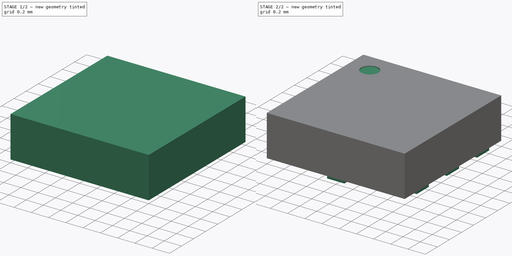
[diagram: build sequence overview — one tinted view per stage of 2, left to right]
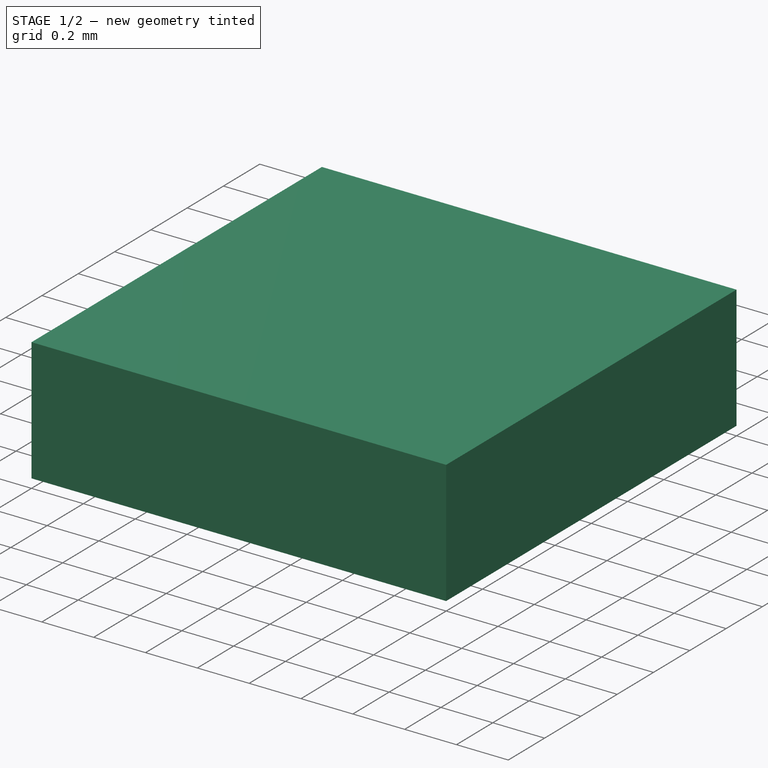
[diagram: stage 1 of 2 — iso view after this stage's code; geometry added in this stage tinted green]
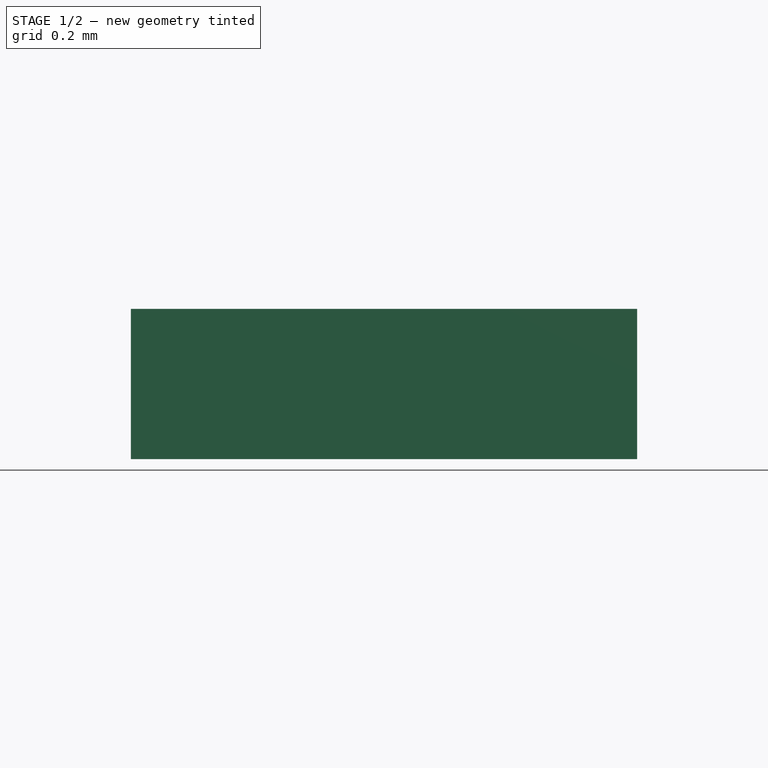
[diagram: stage 1 of 2 — front view after this stage's code; geometry added in this stage tinted green]
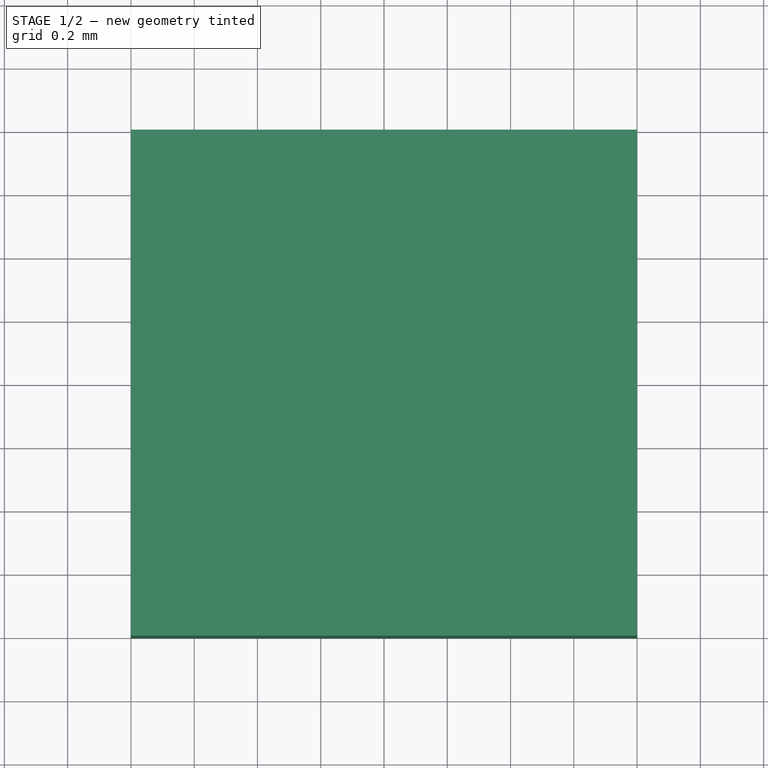
[diagram: stage 1 of 2 — top view after this stage's code; geometry added in this stage tinted green]
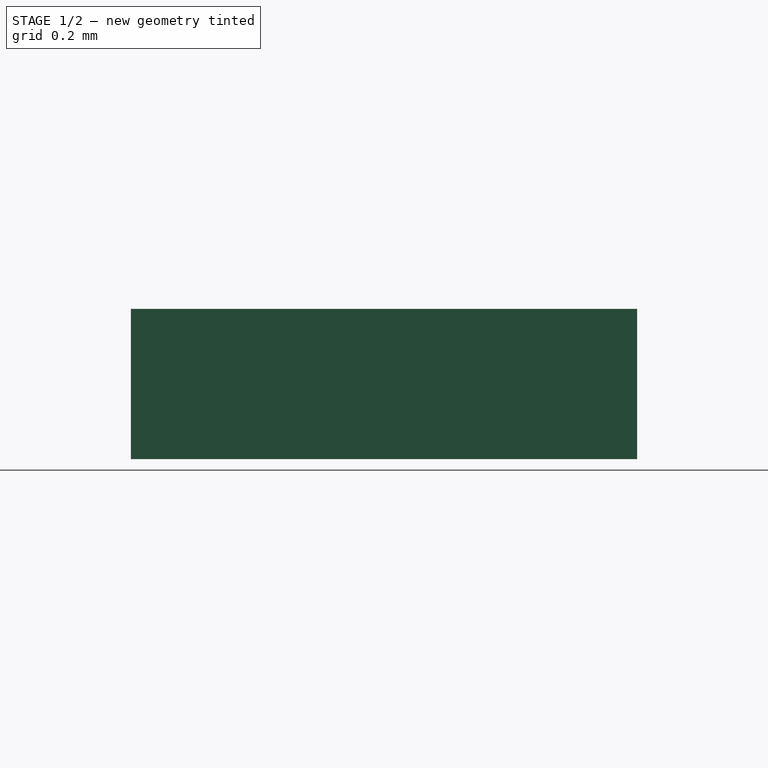
[diagram: stage 1 of 2 — right view after this stage's code; geometry added in this stage tinted green]
FCSTD DOCUMENT  (FreeCAD 0.15R4671 (Git))
Label: xqfn8
License: All rights reserved
LicenseURL: http://en.wikipedia.org/wiki/All_rights_reserved
objects: Sketcher::SketchObject×4, PartDesign::Pad×2, PartDesign::Pocket×2
note: 12 computed .brp shape members not serialized (recipe doc carries the construction recipe); baked Part::Feature solids carry a one-line shape summary decoded from their .brp

FEATURE [Sketcher::SketchObject] Sketch
  sketch-geometry (4):
    g0: LineSegment StartX=-0.8 StartY=0.8 StartZ=0 EndX=0.8 EndY=0.8 EndZ=0
    g1: LineSegment StartX=0.8 StartY=0.8 StartZ=0 EndX=0.8 EndY=-0.8 EndZ=0
    g2: LineSegment StartX=0.8 StartY=-0.8 StartZ=0 EndX=-0.8 EndY=-0.8 EndZ=0
    g3: LineSegment StartX=-0.8 StartY=-0.8 StartZ=0 EndX=-0.8 EndY=0.8 EndZ=0
  constraints (12):
    c: Coincident(g0,g1)
    c: Coincident(g1,g2)
    c: Coincident(g2,g3)
    c: Coincident(g3,g0)
    c: Horizontal(g0)
    c: Horizontal(g2)
    c: Vertical(g1)
    c: Vertical(g3)
    c: DistanceX(g0) = 1.6
    c: DistanceY(g1) = -1.6
    c: Symmetric(g0,g0,g-2)
    c: Symmetric(g0,g1,g-1)
FEATURE [PartDesign::Pad] Pad
  Length = 0.5
  Length2 = 100
  Sketch = -> Sketch
  Type = 0
FEATURE [Sketcher::SketchObject] Sketch001
  ExternalGeometry = -> [Pad]
  Placement = pos=(0,0,0) rot=(1,0,0;3.14159rad)
  Support = -> Pad [Face5]
  sketch-geometry (4):
    g0: LineSegment StartX=-0.8 StartY=0.8 StartZ=0 EndX=0.8 EndY=0.8 EndZ=0
    g1: LineSegment StartX=0.8 StartY=0.8 StartZ=0 EndX=0.8 EndY=-0.8 EndZ=0
    g2: LineSegment StartX=0.8 StartY=-0.8 StartZ=0 EndX=-0.8 EndY=-0.8 EndZ=0
    g3: LineSegment StartX=-0.8 StartY=-0.8 StartZ=0 EndX=-0.8 EndY=0.8 EndZ=0
  constraints (10):
    c: Coincident(g0,g1)
    c: Coincident(g1,g2)
    c: Coincident(g2,g3)
    c: Coincident(g3,g0)
    c: Horizontal(g0)
    c: Horizontal(g2)
    c: Vertical(g1)
    c: Vertical(g3)
    c: Coincident(g1,g-4)
    c: Coincident(g0,g-3)
FEATURE [PartDesign::Pocket] Pocket
  Length = 0.025
  Sketch = -> Sketch001
  Type = 0
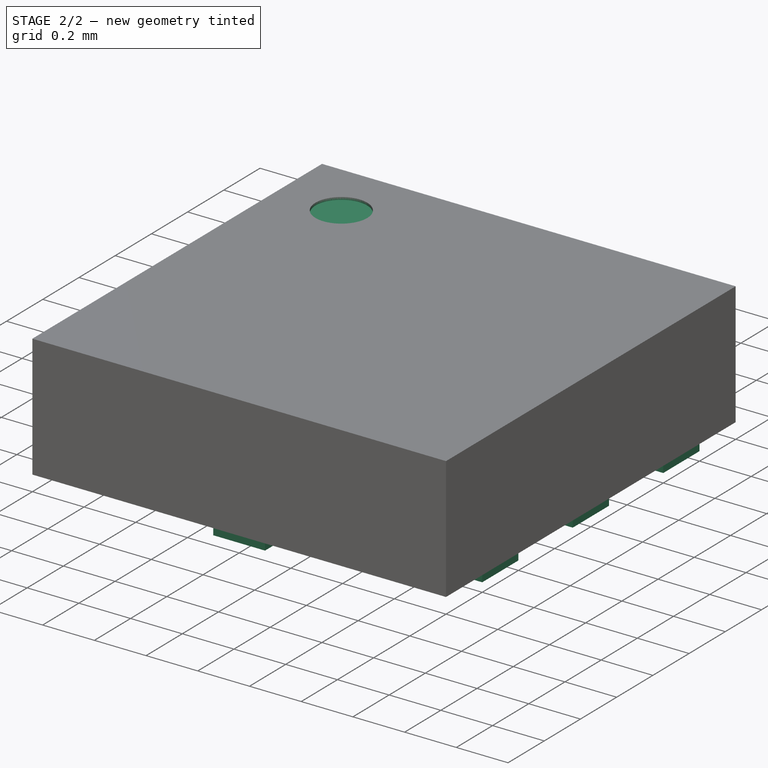
[diagram: stage 2 of 2 — iso view after this stage's code; geometry added in this stage tinted green]
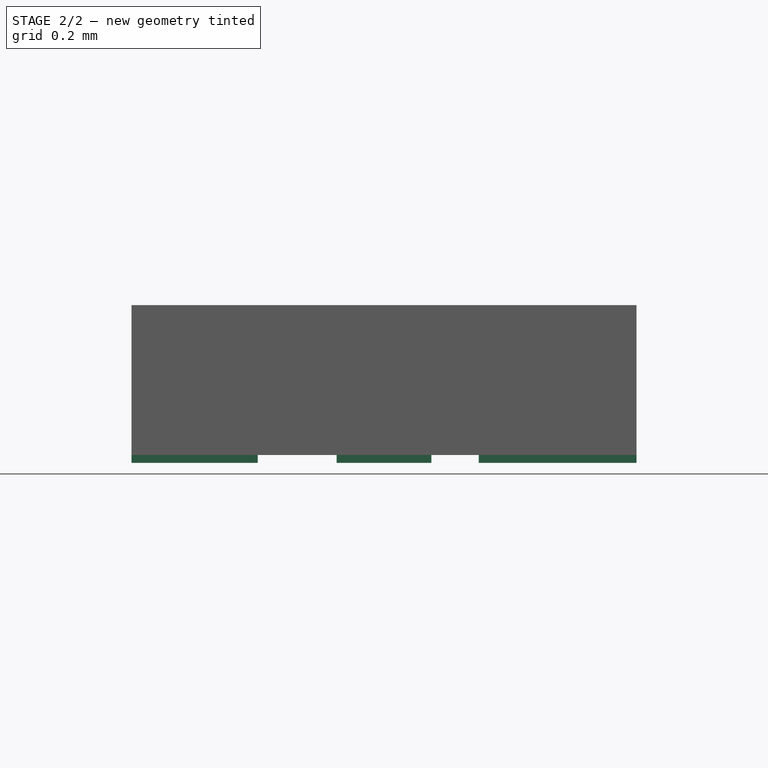
[diagram: stage 2 of 2 — front view after this stage's code; geometry added in this stage tinted green]
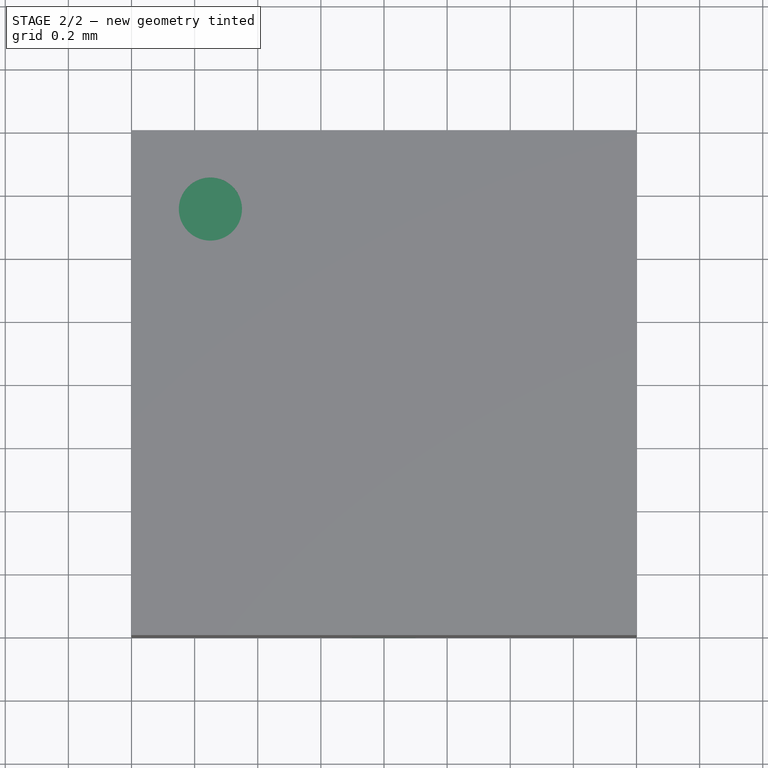
[diagram: stage 2 of 2 — top view after this stage's code; geometry added in this stage tinted green]
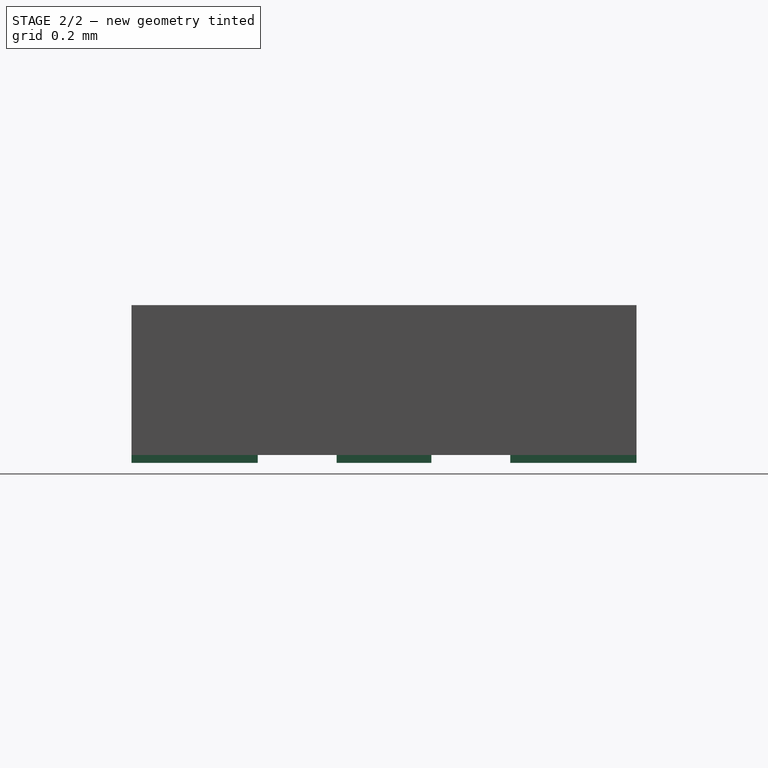
[diagram: stage 2 of 2 — right view after this stage's code; geometry added in this stage tinted green]
FEATURE [Sketcher::SketchObject] Sketch002
  ExternalGeometry = -> [Pocket]
  Placement = pos=(0,0,0.025) rot=(1,0,0;3.14159rad)
  Support = -> Pocket [Face2]
  sketch-geometry (38):
    g0: LineSegment StartX=-0.8 StartY=0.6 StartZ=0 EndX=-0.4 EndY=0.6 EndZ=0
    g1: LineSegment StartX=-0.4 StartY=0.6 StartZ=0 EndX=-0.4 EndY=0.4 EndZ=0
    g2: LineSegment StartX=-0.4 StartY=0.4 StartZ=0 EndX=-0.8 EndY=0.4 EndZ=0
    g3: LineSegment StartX=-0.8 StartY=0.4 StartZ=0 EndX=-0.8 EndY=0.6 EndZ=0
    g4: LineSegment StartX=-0.8 StartY=0.1 StartZ=0 EndX=-0.4 EndY=0.1 EndZ=0
    g5: LineSegment StartX=-0.4 StartY=0.1 StartZ=0 EndX=-0.4 EndY=-0.1 EndZ=0
    g6: LineSegment StartX=-0.4 StartY=-0.1 StartZ=0 EndX=-0.8 EndY=-0.1 EndZ=0
    g7: LineSegment StartX=-0.8 StartY=-0.1 StartZ=0 EndX=-0.8 EndY=0.1 EndZ=0
    g8: LineSegment StartX=-0.8 StartY=-0.4 StartZ=0 EndX=-0.4 EndY=-0.4 EndZ=0
    g9: LineSegment StartX=-0.4 StartY=-0.4 StartZ=0 EndX=-0.4 EndY=-0.6 EndZ=0
    g10: LineSegment StartX=-0.8 StartY=-0.7 StartZ=0 EndX=-0.8 EndY=-0.4 EndZ=0
    g11: LineSegment StartX=0.3 StartY=0.6 StartZ=0 EndX=0.8 EndY=0.6 EndZ=0
    g12: LineSegment StartX=0.8 StartY=0.6 StartZ=0 EndX=0.8 EndY=0.4 EndZ=0
    g13: LineSegment StartX=0.8 StartY=0.4 StartZ=0 EndX=0.3 EndY=0.4 EndZ=0
    g14: LineSegment StartX=0.3 StartY=0.4 StartZ=0 EndX=0.3 EndY=0.6 EndZ=0
    g15: LineSegment StartX=0.3 StartY=0.1 StartZ=0 EndX=0.8 EndY=0.1 EndZ=0
    g16: LineSegment StartX=0.8 StartY=0.1 StartZ=0 EndX=0.8 EndY=-0.1 EndZ=0
    g17: LineSegment StartX=0.8 StartY=-0.1 StartZ=0 EndX=0.3 EndY=-0.1 EndZ=0
    g18: LineSegment StartX=0.3 StartY=-0.1 StartZ=0 EndX=0.3 EndY=0.1 EndZ=0
    g19: LineSegment StartX=0.3 StartY=-0.4 StartZ=0 EndX=0.8 EndY=-0.4 EndZ=0
    g20: LineSegment StartX=0.8 StartY=-0.4 StartZ=0 EndX=0.8 EndY=-0.6 EndZ=0
    g21: LineSegment StartX=0.8 StartY=-0.6 StartZ=0 EndX=0.3 EndY=-0.6 EndZ=0
    g22: LineSegment StartX=0.3 StartY=-0.6 StartZ=0 EndX=0.3 EndY=-0.4 EndZ=0
    g23: LineSegment StartX=-0.8 StartY=-0.7 StartZ=0 EndX=-0.5 EndY=-0.7 EndZ=0
    g24: LineSegment StartX=-0.5 StartY=-0.7 StartZ=0 EndX=-0.5 EndY=-0.6 EndZ=0
    g25: LineSegment StartX=-0.5 StartY=-0.6 StartZ=0 EndX=-0.4 EndY=-0.6 EndZ=0
    g26: LineSegment StartX=-0.1 StartY=-0.4 StartZ=0 EndX=0.1 EndY=-0.4 EndZ=0
    g27: LineSegment StartX=0.1 StartY=-0.4 StartZ=0 EndX=0.1 EndY=-0.8 EndZ=0
    g28: LineSegment StartX=0.1 StartY=-0.8 StartZ=0 EndX=-0.1 EndY=-0.8 EndZ=0
    g29: LineSegment StartX=-0.1 StartY=-0.8 StartZ=0 EndX=-0.1 EndY=-0.4 EndZ=0
    g30: LineSegment StartX=-0.1 StartY=0.8 StartZ=0 EndX=0.1 EndY=0.8 EndZ=0
    g31: LineSegment StartX=0.1 StartY=0.8 StartZ=0 EndX=0.1 EndY=0.4 EndZ=0
    g32: LineSegment StartX=0.1 StartY=0.4 StartZ=0 EndX=-0.1 EndY=0.4 EndZ=0
    g33: LineSegment StartX=-0.1 StartY=0.4 StartZ=0 EndX=-0.1 EndY=0.8 EndZ=0
    g34: LineSegment StartX=-0.15 StartY=0.15 StartZ=0 EndX=0.15 EndY=0.15 EndZ=0
    g35: LineSegment StartX=0.15 StartY=0.15 StartZ=0 EndX=0.15 EndY=-0.15 EndZ=0
    g36: LineSegment StartX=0.15 StartY=-0.15 StartZ=0 EndX=-0.15 EndY=-0.15 EndZ=0
    g37: LineSegment StartX=-0.15 StartY=-0.15 StartZ=0 EndX=-0.15 EndY=0.15 EndZ=0
  constraints (115):
    c: Coincident(g0,g1)
    c: Coincident(g1,g2)
    c: Coincident(g2,g3)
    c: Coincident(g3,g0)
    c: Horizontal(g0)
    c: Horizontal(g2)
    c: Vertical(g1)
    c: Vertical(g3)
    c: Coincident(g4,g5)
    c: Coincident(g5,g6)
    c: Coincident(g6,g7)
    c: Coincident(g7,g4)
    c: Horizontal(g4)
    c: Horizontal(g6)
    c: Vertical(g5)
    c: Vertical(g7)
    c: Coincident(g8,g9)
    c: Coincident(g10,g8)
    c: Horizontal(g8)
    c: Vertical(g9)
    c: Vertical(g10)
    c: PointOnObject(g0,g-3)
    c: PointOnObject(g4,g-3)
    c: PointOnObject(g8,g-3)
    c: Symmetric(g6,g4,g-1)
    c: DistanceY(g5) = -0.2
    c: PointOnObject(g1,g5)
    c: PointOnObject(g8,g5)
    c: Equal(g1,g5)
    c: Equal(g9,g5)
    c: DistanceY(g4,g0) = 0.5
    c: Coincident(g11,g12)
    c: Coincident(g12,g13)
    c: Coincident(g13,g14)
    c: Coincident(g14,g11)
    c: Horizontal(g11)
    c: Horizontal(g13)
    c: Vertical(g12)
    c: Vertical(g14)
    c: Coincident(g15,g16)
    c: Coincident(g16,g17)
    c: Coincident(g17,g18)
    c: Coincident(g18,g15)
    c: Horizontal(g15)
    c: Horizontal(g17)
    c: Vertical(g16)
    c: Vertical(g18)
    c: Coincident(g19,g20)
    c: Coincident(g20,g21)
    c: Coincident(g21,g22)
    c: Coincident(g22,g19)
    c: Horizontal(g19)
    c: Horizontal(g21)
    c: Vertical(g20)
    c: Vertical(g22)
    c: PointOnObject(g19,g-4)
    c: PointOnObject(g15,g-4)
    c: PointOnObject(g12,g-4)
    c: PointOnObject(g11,g0)
    c: PointOnObject(g15,g4)
    c: PointOnObject(g17,g6)
    c: PointOnObject(g19,g8)
    c: PointOnObject(g19,g18)
    c: PointOnObject(g13,g18)
    c: DistanceX(g0) = 0.4
    c: DistanceX(g11) = 0.5
    c: PointOnObject(g13,g2)
    c: DistanceY(g4,g8) = -0.5
    c: Coincident(g23,g10)
    c: Horizontal(g23)
    c: DistanceY(g8,g10) = -0.3
    c: Coincident(g24,g23)
    c: Vertical(g24)
    c: Coincident(g25,g24)
    c: Coincident(g25,g9)
    c: Horizontal(g25)
    c: Equal(g25,g24)
    c: PointOnObject(g21,g25)
    c: Coincident(g26,g27)
    c: Coincident(g27,g28)
    c: Coincident(g28,g29)
    c: Coincident(g29,g26)
    c: Horizontal(g26)
    c: Horizontal(g28)
    c: Vertical(g27)
    c: Vertical(g29)
    c: Coincident(g30,g31)
    c: Coincident(g31,g32)
    c: Coincident(g32,g33)
    c: Coincident(g33,g30)
    c: Horizontal(g30)
    c: Horizontal(g32)
    c: Vertical(g31)
    c: Vertical(g33)
    c: PointOnObject(g27,g-6)
    c: Symmetric(g27,g28,g-2)
    c: PointOnObject(g30,g-5)
    c: PointOnObject(g31,g27)
    c: PointOnObject(g32,g29)
    c: DistanceX(g26) = 0.2
    c: DistanceY(g27) = -0.4
    c: Equal(g33,g29)
    c: Coincident(g34,g35)
    c: Coincident(g35,g36)
    c: Coincident(g36,g37)
    c: Coincident(g37,g34)
    c: Horizontal(g34)
    c: Horizontal(g36)
    c: Vertical(g35)
    c: Vertical(g37)
    c: Symmetric(g34,g34,g-2)
    c: Symmetric(g34,g35,g-1)
    c: Equal(g34,g37)
    c: Equal(g37,g36)
    c: DistanceX(g34) = 0.3
FEATURE [PartDesign::Pad] Pad001
  Length = 0.025
  Length2 = 100
  Sketch = -> Sketch002
  Type = 0
FEATURE [Sketcher::SketchObject] Sketch003
  ExternalGeometry = -> [Pad001]
  Placement = pos=(0,0,0.5) rot=(0,0,1;0rad)
  Support = -> Pad001 [Face1]
  sketch-geometry (3):
    g0: Circle CenterX=-0.55 CenterY=0.55 CenterZ=0 NormalX=0 NormalY=0 NormalZ=1 Radius=0.1
    g1: LineSegment [constr] StartX=-0.55 StartY=0.55 StartZ=0 EndX=-0.55 EndY=0.8 EndZ=0
    g2: LineSegment [constr] StartX=-0.55 StartY=0.55 StartZ=0 EndX=-0.8 EndY=0.55 EndZ=0
  constraints (9):
    c: PointOnObject(g1,g-3)
    c: Vertical(g1)
    c: Coincident(g0,g1)
    c: Coincident(g2,g0)
    c: PointOnObject(g2,g-4)
    c: Horizontal(g2)
    c: Equal(g1,g2)
    c: DistanceY(g1) = 0.25
    c: Radius(g0) = 0.1
FEATURE [PartDesign::Pocket] Pocket001
  Length = 0.01
  Sketch = -> Sketch003
  Type = 0
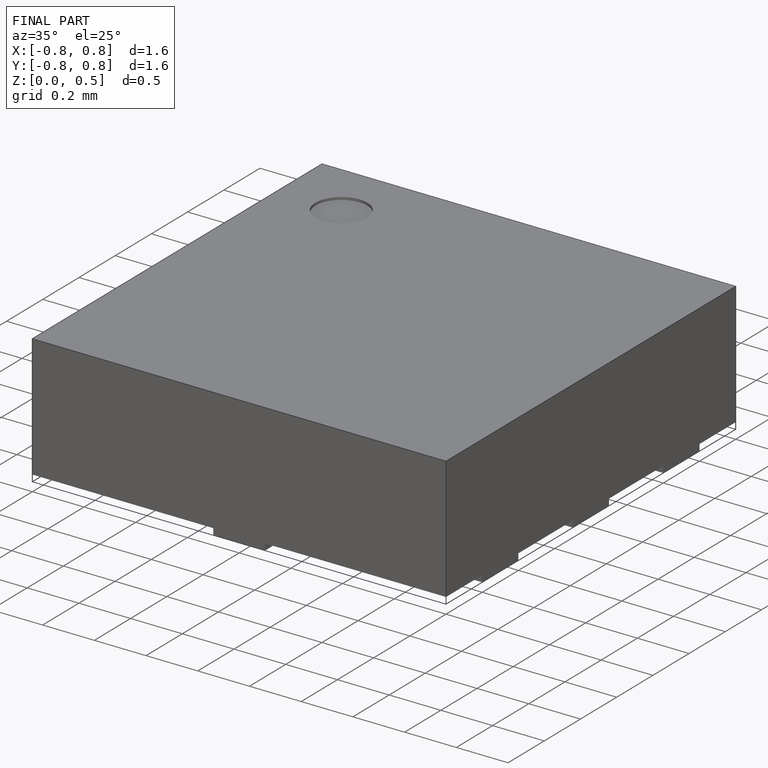
[diagram: finished part — iso view with bounding-box wireframe]
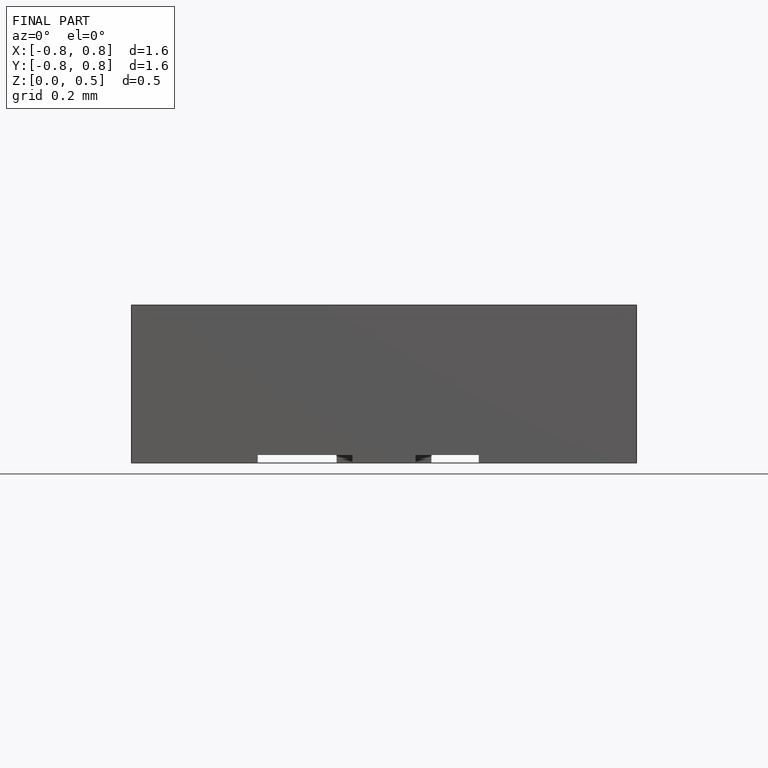
[diagram: finished part — front view with bounding-box wireframe]
